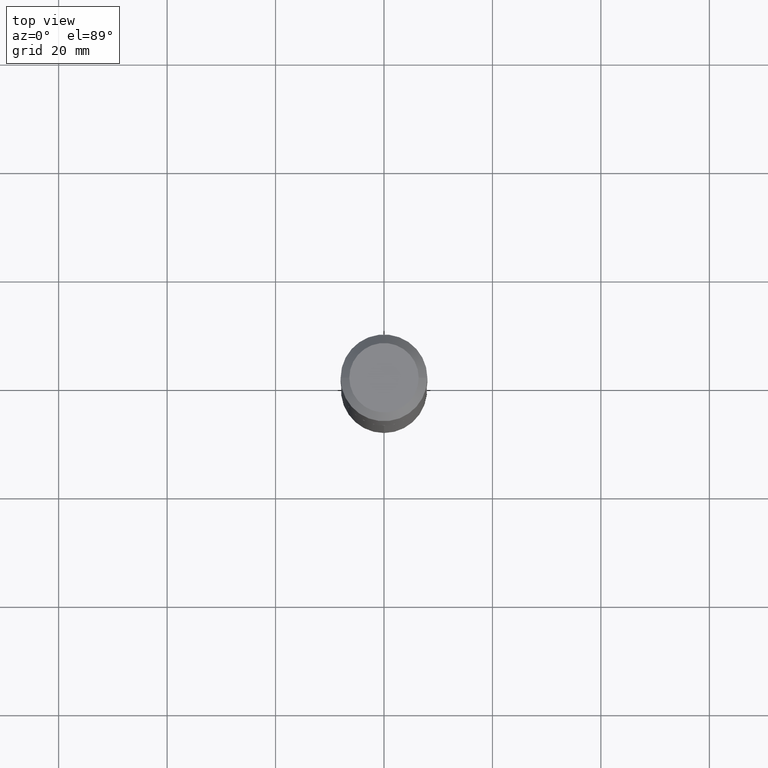
[diagram: clean part render]
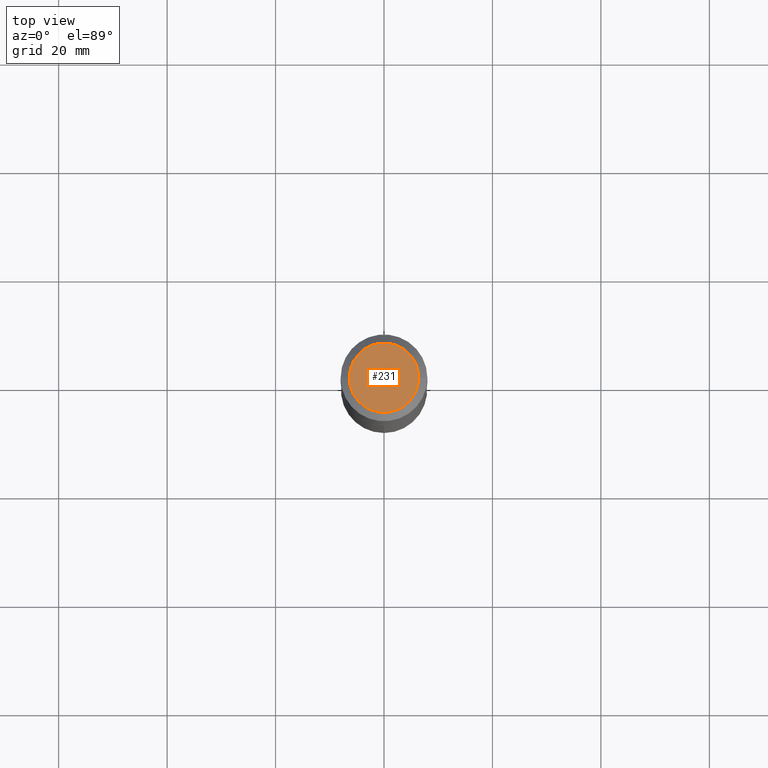
[diagram: same view with one face highlighted and labeled with its STEP entity id]
A machine part, top view. The second image highlights one B-rep face of the part: STEP entity #231.
In plain terms, the highlighted planar face has unit normal (0, -0, -1).
Its self-contained STEP definition (entity closure, byte-faithful):
#24 = VERTEX_POINT ( 'NONE', #331 ) ;
#33 = CIRCLE ( 'NONE', #164, 0.2519600000000000173 ) ;
#35 = CIRCLE ( 'NONE', #417, 0.2519600000000000173 ) ;
#62 = CARTESIAN_POINT ( 'NONE',  ( -0.2519600000000000173, 1.869391481036695286E-15, 3.855188123703174230E-18 ) ) ;
#66 = DIRECTION ( 'NONE',  ( 1.000000000000000000, -6.982962677686266711E-15, 4.876115136096691995E-29 ) ) ;
#71 = DIRECTION ( 'NONE',  ( -2.445468806185136597E-29, 3.491481338843145583E-15, 1.000000000000000000 ) ) ;
#98 = DIRECTION ( 'NONE',  ( 1.000000000000000000, -6.982962677686266711E-15, 4.876115136096691995E-29 ) ) ;
#108 = ORIENTED_EDGE ( 'NONE', *, *, #133, .T. ) ;
#133 = EDGE_CURVE ( 'NONE', #181, #24, #33, .T. ) ;
#149 = PLANE ( 'NONE',  #297 ) ;
#152 = FACE_OUTER_BOUND ( 'NONE', #408, .T. ) ;
#164 = AXIS2_PLACEMENT_3D ( 'NONE', #214, #71, #66 ) ;
#181 = VERTEX_POINT ( 'NONE', #62 ) ;
#214 = CARTESIAN_POINT ( 'NONE',  ( -9.427742298522548188E-47, 1.346031739168365618E-32, 3.855188123715863027E-18 ) ) ;
#231 = ADVANCED_FACE ( 'NONE', ( #152 ), #149, .F. ) ;
#250 = EDGE_CURVE ( 'NONE', #24, #181, #35, .T. ) ;
#294 = DIRECTION ( 'NONE',  ( 2.438088387897960049E-29, -3.491481338843145188E-15, -1.000000000000000000 ) ) ;
#297 = AXIS2_PLACEMENT_3D ( 'NONE', #436, #294, #363 ) ;
#300 = CARTESIAN_POINT ( 'NONE',  ( -9.427742298522548188E-47, 1.346031739168365618E-32, 3.855188123715863027E-18 ) ) ;
#331 = CARTESIAN_POINT ( 'NONE',  ( 0.2519600000000000173, -2.054606664725195058E-15, 3.855188123729198166E-18 ) ) ;
#363 = DIRECTION ( 'NONE',  ( -1.000000000000000000, 6.982962677686265922E-15, -4.876176775795935793E-29 ) ) ;
#393 = ORIENTED_EDGE ( 'NONE', *, *, #250, .T. ) ;
#408 = EDGE_LOOP ( 'NONE', ( #108, #393 ) ) ;
#417 = AXIS2_PLACEMENT_3D ( 'NONE', #300, #449, #98 ) ;
#436 = CARTESIAN_POINT ( 'NONE',  ( -4.713871149261274094E-47, 6.730158695841828091E-33, 1.927594061857931513E-18 ) ) ;
#449 = DIRECTION ( 'NONE',  ( -2.445468806185136597E-29, 3.491481338843145583E-15, 1.000000000000000000 ) ) ;